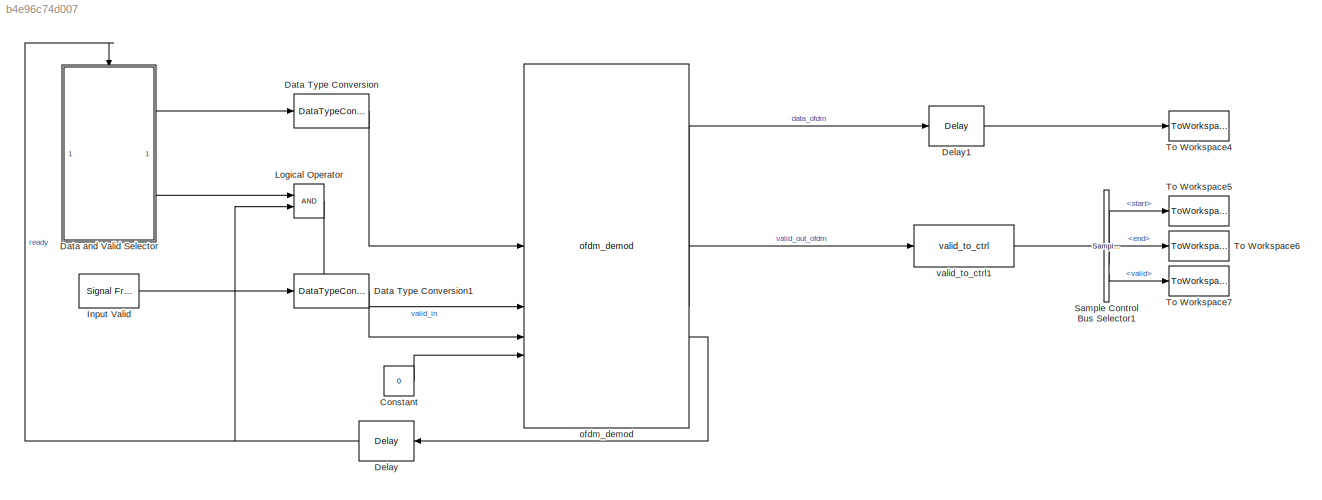
MODEL slx_b4e96c74d007
KIND model
CONFIG AbsTol = auto
CONFIG EnableMultiTasking = off
CONFIG FixedStep = auto
CONFIG MaxStep = auto
CONFIG MinStep = auto
CONFIG RelTol = 1e-3
CONFIG SampleTimeConstraint = Unconstrained
CONFIG SolverName = FixedStepDiscrete
CONFIG StartTime = 0.0
CONFIG StopTime = stopTime
BLOCK [Constant] Constant
  OutDataTypeStr = boolean
  SampleTime = 1/CONST.fPHY
  Value = 0
BLOCK [DataTypeConversion] Data Type Conversion
  OutDataTypeStr = CONST.rxDecimatorOutputDataType
  RndMeth = Floor
  SaturateOnIntegerOverflow = off
BLOCK [DataTypeConversion] Data Type Conversion1
  OutDataTypeStr = fixdt(0,9,0)
  RndMeth = Floor
  SaturateOnIntegerOverflow = off
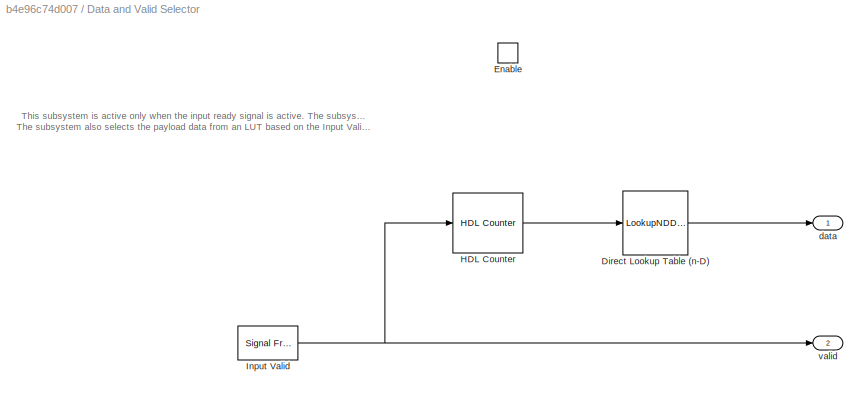
BLOCK [SubSystem] Data and Valid Selector
  TreatAsAtomicUnit = on
BLOCK [LookupNDDirect] Data and Valid Selector/Direct Lookup Table (n-D)
  DiagnosticForOutOfRangeInput = Error
  NumberOfTableDimensions = 1
  Table = dataSymbols
  TableDataTypeStr = double
BLOCK [EnablePort] Data and Valid Selector/Enable
BLOCK [Reference] Data and Valid Selector/HDL Counter  REF=hdlsllib/Sources/HDL Counter
  SourceBlock = hdlsllib/Sources/HDL Counter
  SourceType = HDL Counter
BLOCK [Reference] Data and Valid Selector/Input Valid  REF=dspsrcs4/Signal From
Workspace
  SourceBlock = dspsrcs4/Signal From\nWorkspace
  SourceType = Signal From Workspace
BLOCK [Outport] Data and Valid Selector/data
  InitialOutput = 0
  VectorParamsAs1DForOutWhenUnconnected = off
BLOCK [Outport] Data and Valid Selector/valid
  InitialOutput = 0
  Port = 2
  VectorParamsAs1DForOutWhenUnconnected = off
BLOCK [Delay] Delay
  DelayLength = 1
  InitialCondition = 0
  InputPortMap = u0
  NameLocation = top
  UseCircularBuffer = on
  UserDataPersistent = on
BLOCK [Delay] Delay1
  DelayLength = 1
  InitialCondition = 0
  InputPortMap = u0
  UseCircularBuffer = on
  UserDataPersistent = on
BLOCK [Reference] Input Valid  REF=dspsrcs4/Signal From
Workspace
  SourceBlock = dspsrcs4/Signal From\nWorkspace
  SourceType = Signal From Workspace
BLOCK [Logic] Logical Operator
  AllPortsSameDT = off
  IconShape = distinctive
  OutDataTypeStr = boolean
BLOCK [Reference] Sample Control Bus Selector1  REF=whdlutilities/Sample Control
Bus Selector
  SourceBlock = whdlutilities/Sample Control\nBus Selector
BLOCK [ToWorkspace] To Workspace4
  MaxDataPoints = inf
  SampleTime = 1/CONST.fPHY
  Save2DSignal = 2-D array (concatenate along first dimension)
  VariableName = dataOut
BLOCK [ToWorkspace] To Workspace5
  MaxDataPoints = inf
  SampleTime = 1/CONST.fPHY
  Save2DSignal = 2-D array (concatenate along first dimension)
  VariableName = startOut
BLOCK [ToWorkspace] To Workspace6
  MaxDataPoints = inf
  SampleTime = 1/CONST.fPHY
  Save2DSignal = 2-D array (concatenate along first dimension)
  VariableName = endOut
BLOCK [ToWorkspace] To Workspace7
  MaxDataPoints = inf
  SampleTime = 1/CONST.fPHY
  Save2DSignal = 2-D array (concatenate along first dimension)
  VariableName = validOut
BLOCK [Reference] ofdm_demod  REF=HDL_ieee_8021513/ofdm_demod
  SourceBlock = HDL_ieee_8021513/ofdm_demod
  SourceProductName = HDL IEEE 8021513
  SourceType = SubSystem
BLOCK [Reference] valid_to_ctrl1  REF=HDL_ieee_8021513/valid_to_ctrl
  SourceBlock = HDL_ieee_8021513/valid_to_ctrl
  SourceProductName = HDL IEEE 8021513
  SourceType = SubSystem
ANNOTATION Data and Valid Selector: This subsystem is active only when the input ready signal is active. The subsystem selects the Input Valid value and outputs the valid signal. The subsystem also selects the payload data from an LUT based on the Input Valid signal and outputs it as data signal.
LINE Constant:1 -> ofdm_demod:4
LINE Data Type Conversion1:1 -> ofdm_demod:3
LINE Data Type Conversion:1 -> ofdm_demod:1
LINE Data and Valid Selector/Direct Lookup Table (n-D):1 -> Data and Valid Selector/data:1
LINE Data and Valid Selector/HDL Counter:1 -> Data and Valid Selector/Direct Lookup Table (n-D):1
NET Data and Valid Selector/Input Valid:1 -> Data and Valid Selector/HDL Counter:1, Data and Valid Selector/valid:1
LINE Data and Valid Selector:1 -> Data Type Conversion:1
LINE Data and Valid Selector:2 -> Logical Operator:1
LINE Delay1:1 -> To Workspace4:1
NET Delay:1 -> Data and Valid Selector:enable, Logical Operator:2
LINE Input Valid:1 -> Data Type Conversion1:1
LINE Logical Operator:1 -> ofdm_demod:2
LINE Sample Control Bus Selector1:1 -> To Workspace5:1
LINE Sample Control Bus Selector1:2 -> To Workspace6:1
LINE Sample Control Bus Selector1:3 -> To Workspace7:1
LINE ofdm_demod:1 -> Delay1:1
LINE ofdm_demod:2 -> valid_to_ctrl1:1
LINE ofdm_demod:3 -> Delay:1
LINE valid_to_ctrl1:1 -> Sample Control Bus Selector1:1
note: NET lines group one-source signal fan-out (src -> all destinations, sorted); 1:1 wires keep LINE
